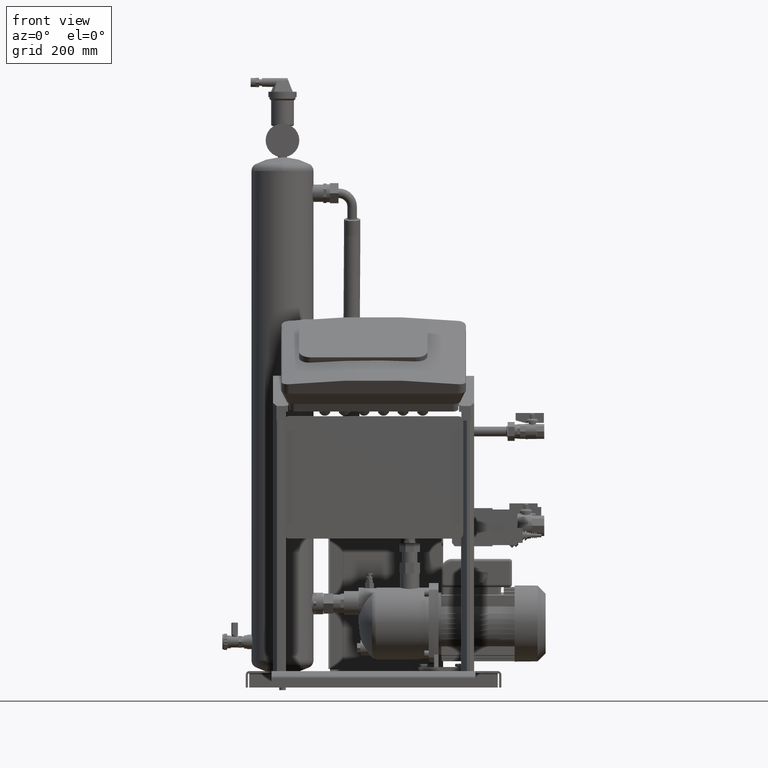
[diagram: clean part render]
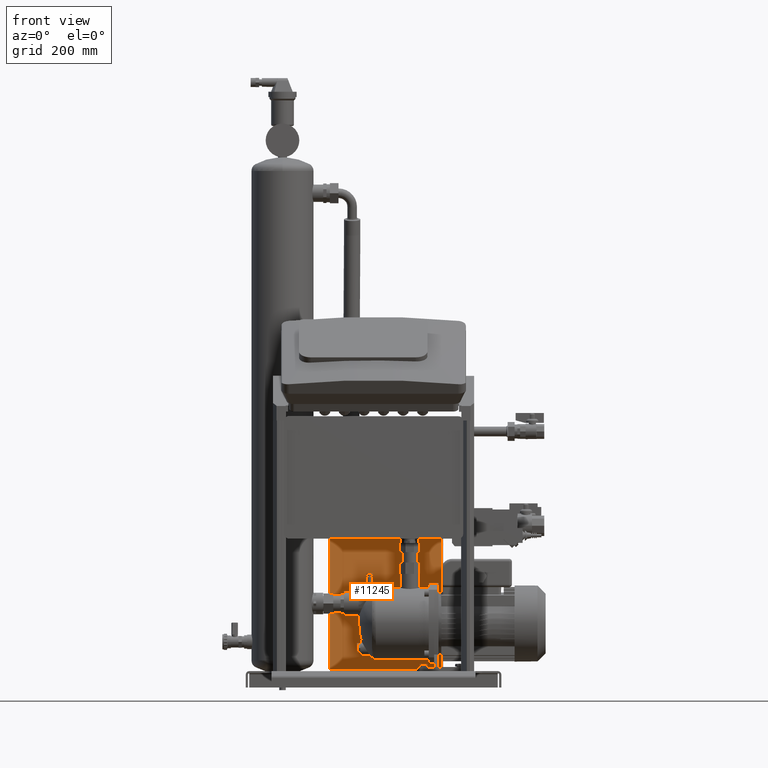
[diagram: same view with one face highlighted and labeled with its STEP entity id]
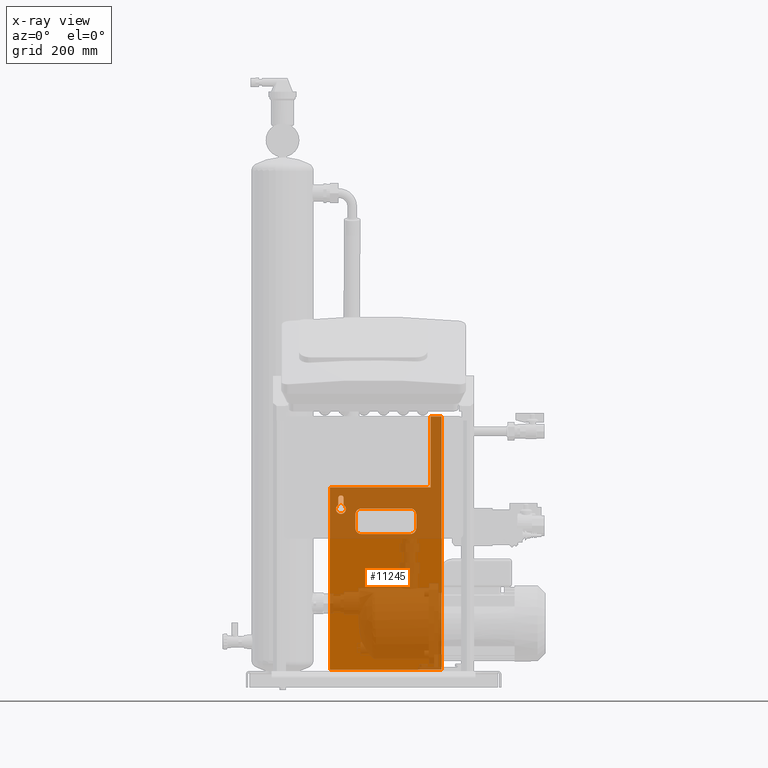
[diagram: x-ray of the same camera — body ghosted, the highlighted face saturated]
A machine part, front view. The second image highlights one B-rep face of the part: STEP entity #11245.
The next image is the same camera in x-ray: the body ghosted, the highlighted face saturated — about 62% of this face is hidden behind the body in this view.
In plain terms, the highlighted face is a freeform B-spline surface patch.
Its self-contained STEP definition (entity closure, byte-faithful):
#11052=CARTESIAN_POINT('',(169.69937185534144,114.74999999896136,496.7500000000087));
#11053=CARTESIAN_POINT('',(-35.300628144670071,114.74999999896136,496.7500000000087));
#11054=CARTESIAN_POINT('',(169.69937185534138,114.74999999896136,31.750000000000739));
#11055=CARTESIAN_POINT('',(-35.300628144670128,114.74999999896136,31.750000000000739));
#11056=B_SPLINE_SURFACE_WITH_KNOTS('',1,1,((#11052,#11054),(#11053,#11055)),.UNSPECIFIED.,.F.,.F.,.U.,(2,2),(2,2),(0.0,205.00000000001151),(0.0,465.00000000000796),.UNSPECIFIED.);
#11057=CARTESIAN_POINT('',(-35.300628144670057,114.74999999896136,32.750000000011802));
#11058=VERTEX_POINT('',#11057);
#11059=CARTESIAN_POINT('',(-35.300628144661708,114.74999999896136,31.75000000000075));
#11060=VERTEX_POINT('',#11059);
#11061=CARTESIAN_POINT('',(-35.300628144661914,114.74999999896136,32.750000000011795));
#11062=DIRECTION('',(0.0,0.0,-1.0));
#11063=VECTOR('',#11062,1.000000000011056);
#11064=LINE('',#11061,#11063);
#11065=EDGE_CURVE('',#11058,#11060,#11064,.T.);
#11066=ORIENTED_EDGE('',*,*,#11065,.T.);
#11067=CARTESIAN_POINT('',(169.6993718553299,114.74999999896136,31.75000000000075));
#11068=VERTEX_POINT('',#11067);
#11069=CARTESIAN_POINT('',(-35.300628144661715,114.74999999896136,31.750000000000739));
#11070=DIRECTION('',(1.0,0.0,0.0));
#11071=VECTOR('',#11070,204.99999999999162);
#11072=LINE('',#11069,#11071);
#11073=EDGE_CURVE('',#11060,#11068,#11072,.T.);
#11074=ORIENTED_EDGE('',*,*,#11073,.T.);
#11075=CARTESIAN_POINT('',(169.69937185532984,114.74999999896136,32.750000000011816));
#11076=VERTEX_POINT('',#11075);
#11077=CARTESIAN_POINT('',(169.69937185534138,114.74999999896136,31.750000000000739));
#11078=DIRECTION('',(0.0,0.0,1.0));
#11079=VECTOR('',#11078,1.000000000011085);
#11080=LINE('',#11077,#11079);
#11081=EDGE_CURVE('',#11068,#11076,#11080,.T.);
#11082=ORIENTED_EDGE('',*,*,#11081,.T.);
#11083=CARTESIAN_POINT('',(169.69937185532984,114.74999999896136,496.75000000000193));
#11084=VERTEX_POINT('',#11083);
#11085=CARTESIAN_POINT('',(169.69937185532982,114.74999999896136,32.750000000011823));
#11086=DIRECTION('',(0.0,0.0,1.0));
#11087=VECTOR('',#11086,463.99999999999011);
#11088=LINE('',#11085,#11087);
#11089=EDGE_CURVE('',#11076,#11084,#11088,.T.);
#11090=ORIENTED_EDGE('',*,*,#11089,.T.);
#11091=CARTESIAN_POINT('',(149.69937185532996,114.74999999896136,496.7500000000087));
#11092=VERTEX_POINT('',#11091);
#11093=CARTESIAN_POINT('',(149.69937185532996,114.74999999896136,496.7500000000087));
#11094=DIRECTION('',(1.0,0.0,0.0));
#11095=VECTOR('',#11094,19.999999999999886);
#11096=LINE('',#11093,#11095);
#11097=EDGE_CURVE('',#11092,#11084,#11096,.T.);
#11098=ORIENTED_EDGE('',*,*,#11097,.F.);
#11099=CARTESIAN_POINT('',(149.69937185532996,114.74999999896136,366.7500000000087));
#11100=VERTEX_POINT('',#11099);
#11101=CARTESIAN_POINT('',(149.69937185532996,114.74999999896136,366.7500000000087));
#11102=DIRECTION('',(0.0,0.0,1.0));
#11103=VECTOR('',#11102,130.0);
#11104=LINE('',#11101,#11103);
#11105=EDGE_CURVE('',#11100,#11092,#11104,.T.);
#11106=ORIENTED_EDGE('',*,*,#11105,.F.);
#11107=CARTESIAN_POINT('',(109.69937185532993,114.74999999896136,366.74999999999278));
#11108=VERTEX_POINT('',#11107);
#11109=CARTESIAN_POINT('',(109.69937185532993,114.74999999896136,366.7500000000087));
#11110=DIRECTION('',(1.0,0.0,0.0));
#11111=VECTOR('',#11110,40.000000000000028);
#11112=LINE('',#11109,#11111);
#11113=EDGE_CURVE('',#11108,#11100,#11112,.T.);
#11114=ORIENTED_EDGE('',*,*,#11113,.F.);
#11115=CARTESIAN_POINT('',(54.699371855329929,114.74999999896136,366.74999999999278));
#11116=VERTEX_POINT('',#11115);
#11117=CARTESIAN_POINT('',(54.699371855329929,114.74999999896136,366.7500000000087));
#11118=DIRECTION('',(1.0,0.0,0.0));
#11119=VECTOR('',#11118,55.0);
#11120=LINE('',#11117,#11119);
#11121=EDGE_CURVE('',#11116,#11108,#11120,.T.);
#11122=ORIENTED_EDGE('',*,*,#11121,.F.);
#11123=CARTESIAN_POINT('',(-35.300628144670057,114.74999999896136,366.74999999998971));
#11124=VERTEX_POINT('',#11123);
#11125=CARTESIAN_POINT('',(-35.300628144670057,114.74999999896136,366.7500000000087));
#11126=DIRECTION('',(1.0,0.0,0.0));
#11127=VECTOR('',#11126,89.999999999999986);
#11128=LINE('',#11125,#11127);
#11129=EDGE_CURVE('',#11124,#11116,#11128,.T.);
#11130=ORIENTED_EDGE('',*,*,#11129,.F.);
#11131=CARTESIAN_POINT('',(-35.30062814467005,114.74999999896147,32.750000000011823));
#11132=DIRECTION('',(0.0,0.0,1.0));
#11133=VECTOR('',#11132,333.99999999997789);
#11134=LINE('',#11131,#11133);
#11135=EDGE_CURVE('',#11058,#11124,#11134,.T.);
#11136=ORIENTED_EDGE('',*,*,#11135,.F.);
#11137=EDGE_LOOP('',(#11066,#11074,#11082,#11090,#11098,#11106,#11114,#11122,#11130,#11136));
#11138=FACE_OUTER_BOUND('',#11137,.T.);
#11139=CARTESIAN_POINT('',(123.19937185532993,114.74999999935665,291.75000000000853));
#11140=VERTEX_POINT('',#11139);
#11141=CARTESIAN_POINT('',(112.19937185532993,114.74999999935665,280.75000000000853));
#11142=VERTEX_POINT('',#11141);
#11143=CARTESIAN_POINT('',(112.19937185532993,114.74999999896136,291.75000000000853));
#11144=DIRECTION('',(0.0,1.0,0.0));
#11145=DIRECTION('',(0.707106781186548,0.0,-0.707106781186548));
#11146=AXIS2_PLACEMENT_3D('',#11143,#11144,#11145);
#11147=CIRCLE('',#11146,11.0);
#11148=EDGE_CURVE('',#11140,#11142,#11147,.T.);
#11149=ORIENTED_EDGE('',*,*,#11148,.T.);
#11150=CARTESIAN_POINT('',(22.199371855329929,114.74999999935665,280.75000000000853));
#11151=VERTEX_POINT('',#11150);
#11152=CARTESIAN_POINT('',(112.19937185532993,114.74999999896136,280.75000000000853));
#11153=DIRECTION('',(-1.0,0.0,0.0));
#11154=VECTOR('',#11153,90.0);
#11155=LINE('',#11152,#11154);
#11156=EDGE_CURVE('',#11142,#11151,#11155,.T.);
#11157=ORIENTED_EDGE('',*,*,#11156,.T.);
#11158=CARTESIAN_POINT('',(11.199371855329929,114.74999999935665,291.75000000000853));
#11159=VERTEX_POINT('',#11158);
#11160=CARTESIAN_POINT('',(22.199371855329929,114.74999999896136,291.75000000000853));
#11161=DIRECTION('',(0.0,1.0,0.0));
#11162=DIRECTION('',(-0.707106781186548,0.0,-0.707106781186548));
#11163=AXIS2_PLACEMENT_3D('',#11160,#11161,#11162);
#11164=CIRCLE('',#11163,11.0);
#11165=EDGE_CURVE('',#11151,#11159,#11164,.T.);
#11166=ORIENTED_EDGE('',*,*,#11165,.T.);
#11167=CARTESIAN_POINT('',(11.199371855329929,114.74999999935665,316.75000000000853));
#11168=VERTEX_POINT('',#11167);
#11169=CARTESIAN_POINT('',(11.199371855329929,114.74999999896136,291.75000000000853));
#11170=DIRECTION('',(0.0,0.0,1.0));
#11171=VECTOR('',#11170,25.0);
#11172=LINE('',#11169,#11171);
#11173=EDGE_CURVE('',#11159,#11168,#11172,.T.);
#11174=ORIENTED_EDGE('',*,*,#11173,.T.);
#11175=CARTESIAN_POINT('',(22.199371855329929,114.74999999935665,327.75000000000853));
#11176=VERTEX_POINT('',#11175);
#11177=CARTESIAN_POINT('',(22.199371855329929,114.74999999896136,316.75000000000853));
#11178=DIRECTION('',(0.0,1.0,0.0));
#11179=DIRECTION('',(-0.707106781186548,0.0,0.707106781186548));
#11180=AXIS2_PLACEMENT_3D('',#11177,#11178,#11179);
#11181=CIRCLE('',#11180,11.0);
#11182=EDGE_CURVE('',#11168,#11176,#11181,.T.);
#11183=ORIENTED_EDGE('',*,*,#11182,.T.);
#11184=CARTESIAN_POINT('',(112.19937185532993,114.74999999935665,327.75000000000853));
#11185=VERTEX_POINT('',#11184);
#11186=CARTESIAN_POINT('',(22.199371855329929,114.74999999896136,327.75000000000853));
#11187=DIRECTION('',(1.0,0.0,0.0));
#11188=VECTOR('',#11187,90.0);
#11189=LINE('',#11186,#11188);
#11190=EDGE_CURVE('',#11176,#11185,#11189,.T.);
#11191=ORIENTED_EDGE('',*,*,#11190,.T.);
#11192=CARTESIAN_POINT('',(123.19937185532993,114.74999999935665,316.75000000000853));
#11193=VERTEX_POINT('',#11192);
#11194=CARTESIAN_POINT('',(112.19937185532993,114.74999999896136,316.75000000000853));
#11195=DIRECTION('',(0.0,1.0,0.0));
#11196=DIRECTION('',(0.707106781186548,0.0,0.707106781186548));
#11197=AXIS2_PLACEMENT_3D('',#11194,#11195,#11196);
#11198=CIRCLE('',#11197,11.0);
#11199=EDGE_CURVE('',#11185,#11193,#11198,.T.);
#11200=ORIENTED_EDGE('',*,*,#11199,.T.);
#11201=CARTESIAN_POINT('',(123.19937185532994,114.74999999896136,316.75000000000853));
#11202=DIRECTION('',(0.0,0.0,-1.0));
#11203=VECTOR('',#11202,25.0);
#11204=LINE('',#11201,#11203);
#11205=EDGE_CURVE('',#11193,#11140,#11204,.T.);
#11206=ORIENTED_EDGE('',*,*,#11205,.T.);
#11207=EDGE_LOOP('',(#11149,#11157,#11166,#11174,#11183,#11191,#11200,#11206));
#11208=FACE_BOUND('',#11207,.T.);
#11209=CARTESIAN_POINT('',(-20.300628144670071,114.74999999928889,346.75000000000864));
#11210=VERTEX_POINT('',#11209);
#11211=CARTESIAN_POINT('',(-10.300628144670071,114.74999999928889,346.75000000000864));
#11212=VERTEX_POINT('',#11211);
#11213=CARTESIAN_POINT('',(-15.300628144670071,114.74999999896136,346.75000000000858));
#11214=DIRECTION('',(0.0,1.0,0.0));
#11215=DIRECTION('',(-1.0,0.0,0.0));
#11216=AXIS2_PLACEMENT_3D('',#11213,#11214,#11215);
#11217=CIRCLE('',#11216,5.0);
#11218=EDGE_CURVE('',#11210,#11212,#11217,.T.);
#11219=ORIENTED_EDGE('',*,*,#11218,.T.);
#11220=CARTESIAN_POINT('',(-10.300628144670071,114.74999999928889,334.23331477400859));
#11221=VERTEX_POINT('',#11220);
#11222=CARTESIAN_POINT('',(-10.300628144670071,114.74999999896136,346.75000000000864));
#11223=DIRECTION('',(0.0,0.0,-1.0));
#11224=VECTOR('',#11223,12.51668522600005);
#11225=LINE('',#11222,#11224);
#11226=EDGE_CURVE('',#11212,#11221,#11225,.T.);
#11227=ORIENTED_EDGE('',*,*,#11226,.T.);
#11228=CARTESIAN_POINT('',(-20.300628144670071,114.74999999928889,334.23331477400859));
#11229=VERTEX_POINT('',#11228);
#11230=CARTESIAN_POINT('',(-15.300628144670071,114.74999999896136,326.75000000000858));
#11231=DIRECTION('',(0.0,1.0,0.0));
#11232=DIRECTION('',(-1.0,0.0,0.0));
#11233=AXIS2_PLACEMENT_3D('',#11230,#11231,#11232);
#11234=CIRCLE('',#11233,9.0);
#11235=EDGE_CURVE('',#11221,#11229,#11234,.T.);
#11236=ORIENTED_EDGE('',*,*,#11235,.T.);
#11237=CARTESIAN_POINT('',(-20.300628144670071,114.74999999896136,334.23331477400859));
#11238=DIRECTION('',(0.0,0.0,1.0));
#11239=VECTOR('',#11238,12.51668522600005);
#11240=LINE('',#11237,#11239);
#11241=EDGE_CURVE('',#11229,#11210,#11240,.T.);
#11242=ORIENTED_EDGE('',*,*,#11241,.T.);
#11243=EDGE_LOOP('',(#11219,#11227,#11236,#11242));
#11244=FACE_BOUND('',#11243,.T.);
#11245=ADVANCED_FACE('',(#11138,#11208,#11244),#11056,.T.);